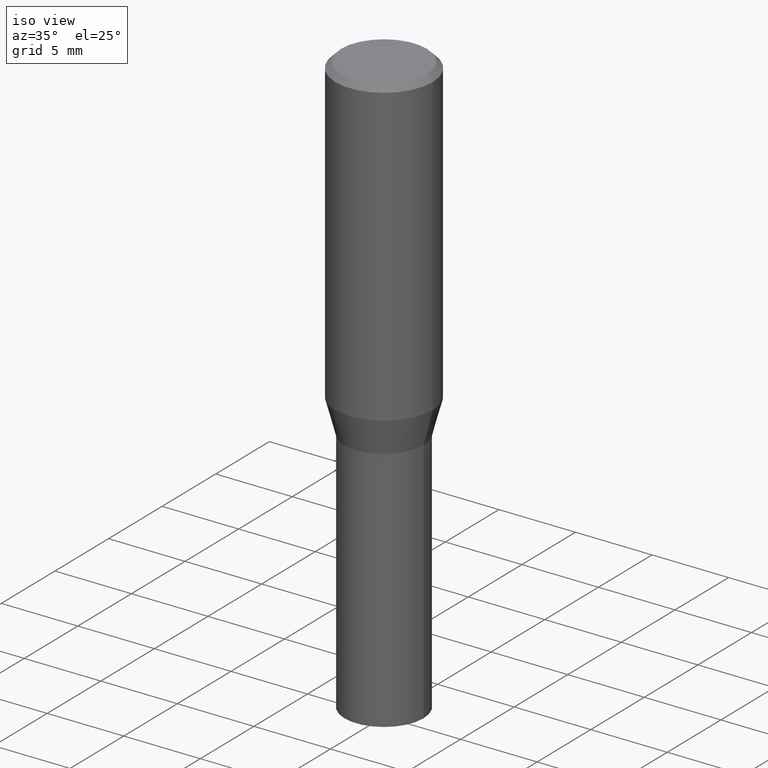
[diagram: clean part render]
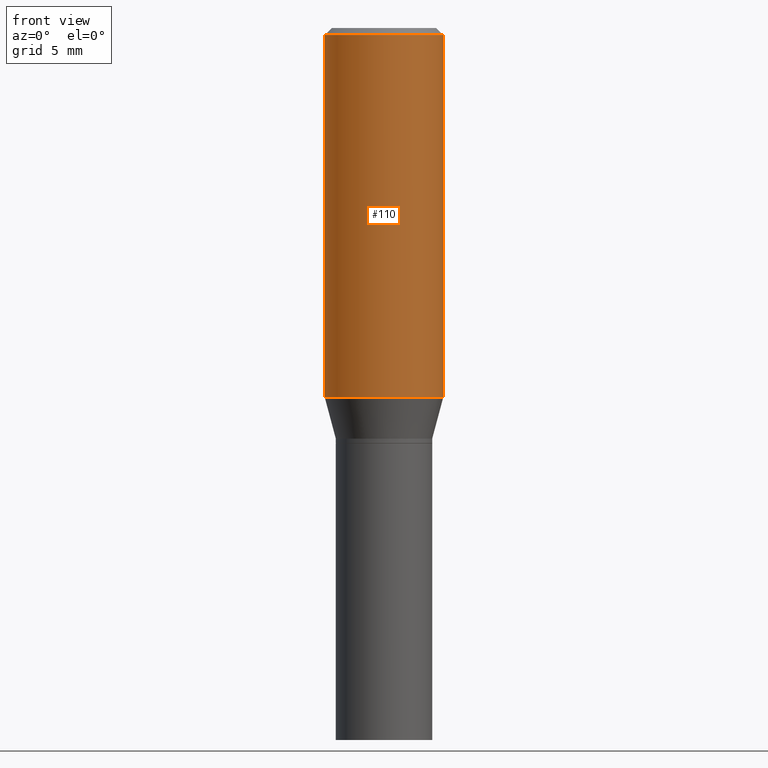
[diagram: tour spotlight — one face highlighted and labeled with its STEP entity id]
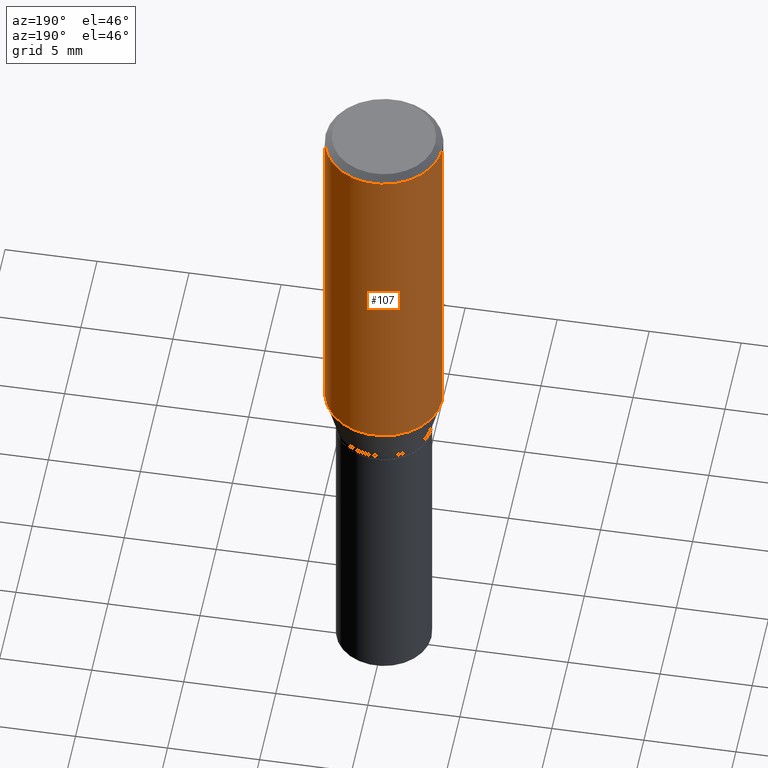
[diagram: tour spotlight — one face highlighted and labeled with its STEP entity id]
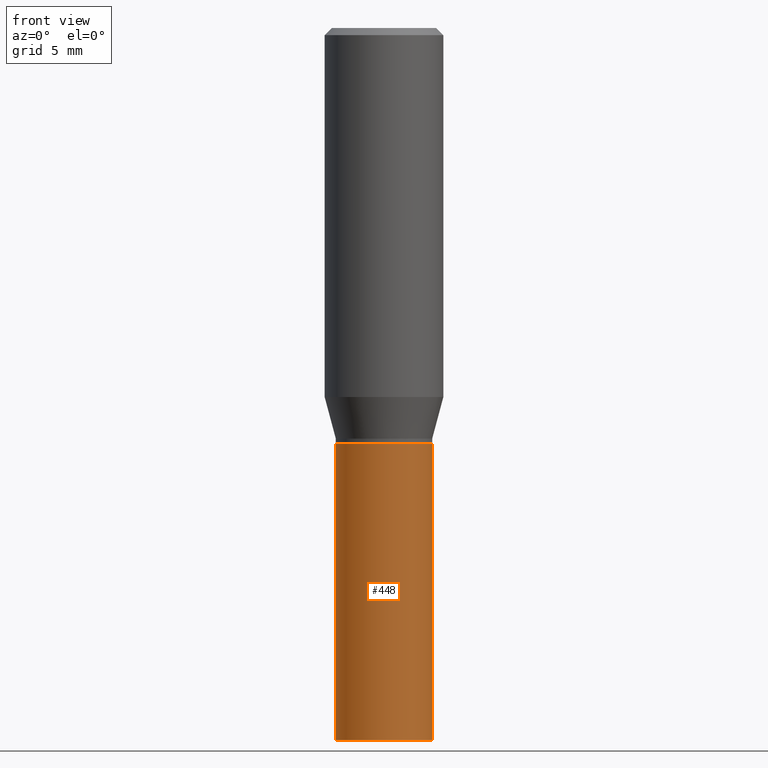
[diagram: tour spotlight — one face highlighted and labeled with its STEP entity id]
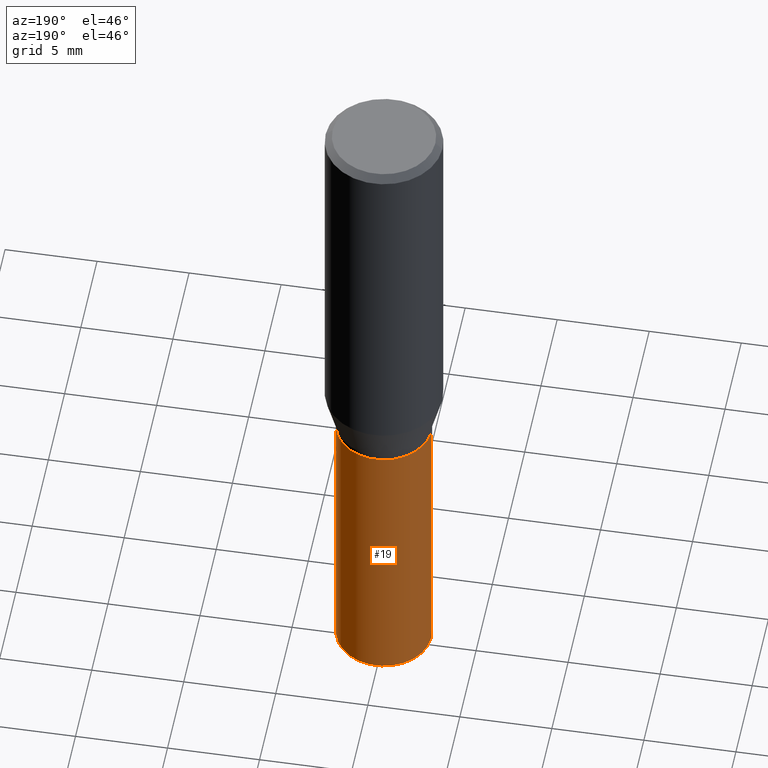
[diagram: tour spotlight — one face highlighted and labeled with its STEP entity id]
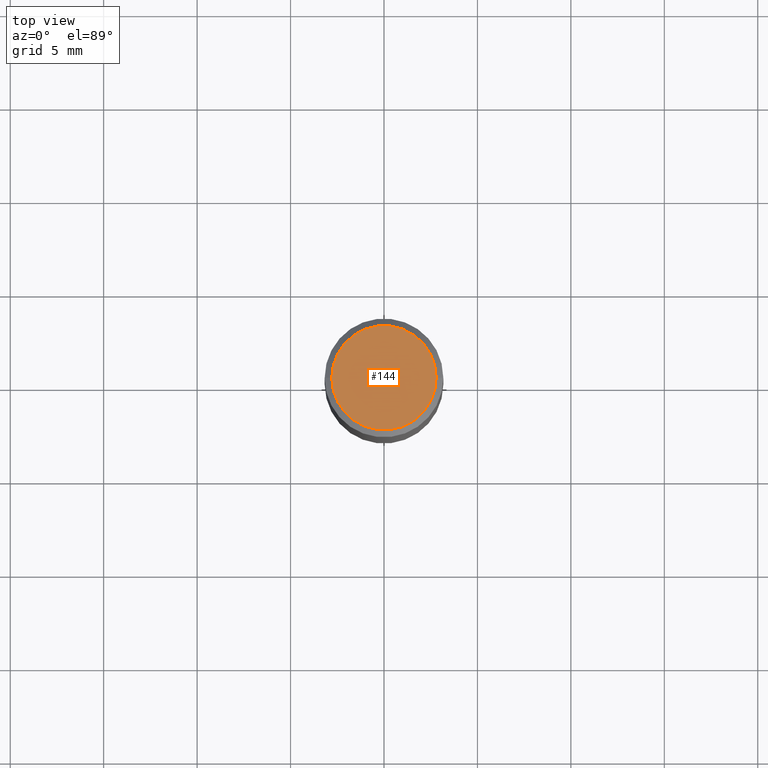
[diagram: tour spotlight — one face highlighted and labeled with its STEP entity id]
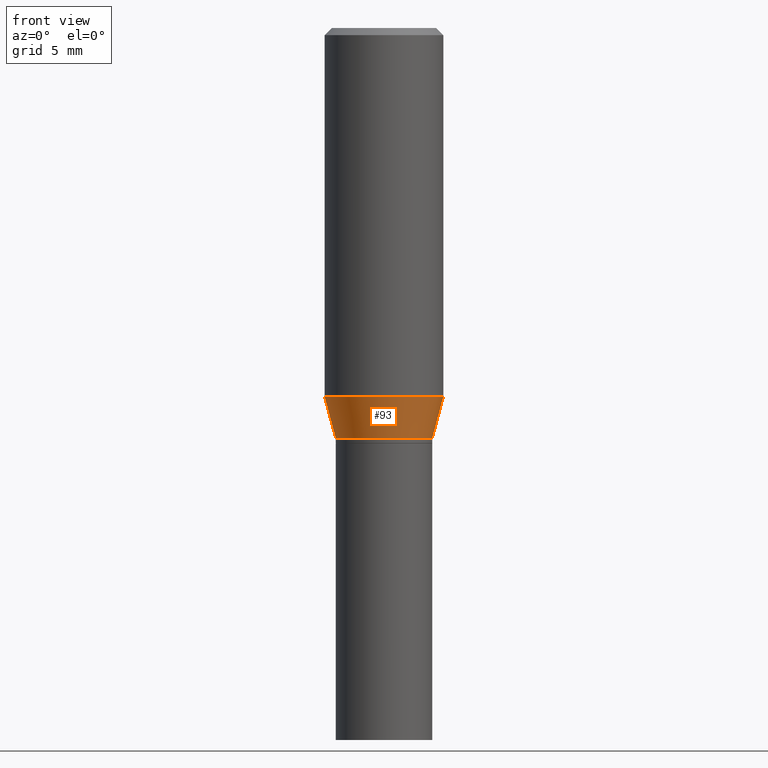
[diagram: tour spotlight — one face highlighted and labeled with its STEP entity id]
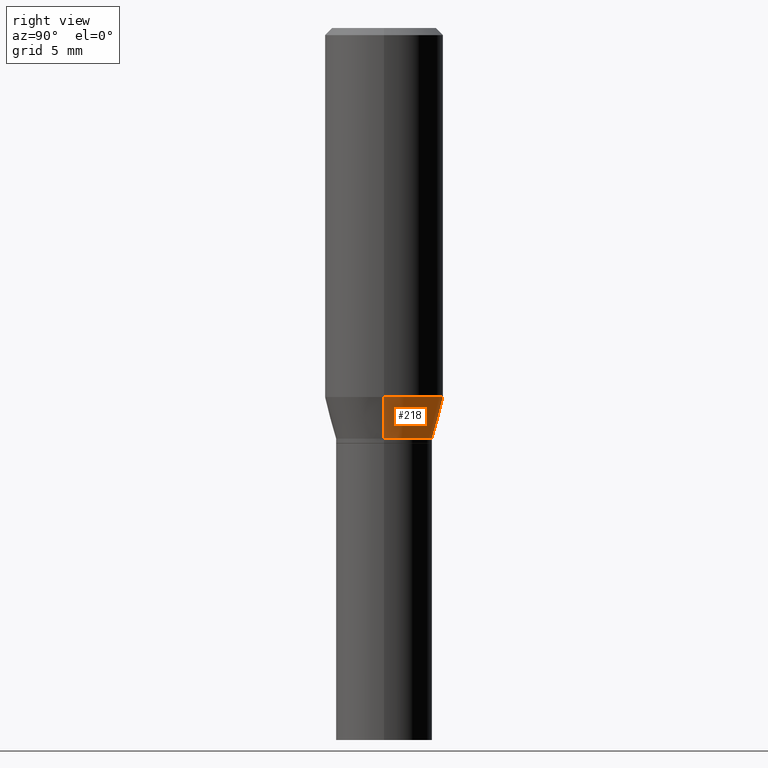
[diagram: tour spotlight — one face highlighted and labeled with its STEP entity id]
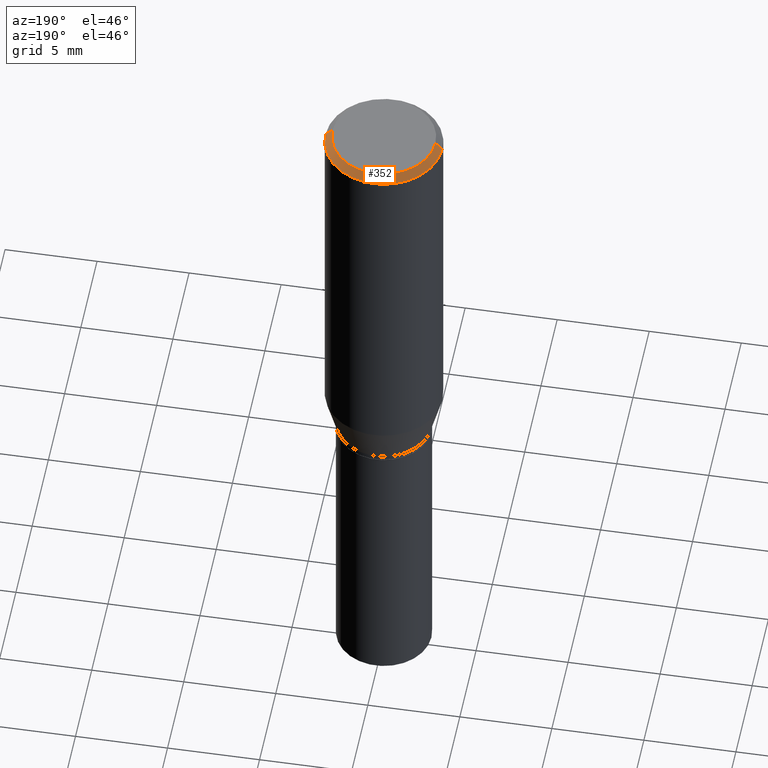
[diagram: tour spotlight — one face highlighted and labeled with its STEP entity id]
A machine part: a face-by-face anatomy tour. The part has 16 B-rep faces; the first image is the clean iso view, then the 8 largest visible faces are spotlighted one at a time (largest first), each with its STEP entity span.

Face 1 — front view, entity #110. In plain terms, the highlighted cylindrical surface (partial cylindrical patch) has radius 3.175 mm, axis along (-0, 0, 1).
Definition (entity closure, byte-faithful):
#8 = DIRECTION ( 'NONE',  ( -2.445468806185136597E-29, 3.491481338843145583E-15, 1.000000000000000000 ) ) ;
#13 = ORIENTED_EDGE ( 'NONE', *, *, #37, .T. ) ;
#14 = CARTESIAN_POINT ( 'NONE',  ( 3.668203209277705088E-31, -5.237222008264718399E-17, -0.01499999999999999944 ) ) ;
#20 = FACE_OUTER_BOUND ( 'NONE', #75, .T. ) ;
#25 = AXIS2_PLACEMENT_3D ( 'NONE', #83, #262, #378 ) ;
#31 = VERTEX_POINT ( 'NONE', #142 ) ;
#37 = EDGE_CURVE ( 'NONE', #318, #52, #246, .T. ) ;
#52 = VERTEX_POINT ( 'NONE', #418 ) ;
#71 = CARTESIAN_POINT ( 'NONE',  ( 0.1250000000000000000, -8.728703347107833388E-16, 6.095220969744919741E-30 ) ) ;
#73 = DIRECTION ( 'NONE',  ( -2.445468806185136597E-29, 3.491481338843145583E-15, 1.000000000000000000 ) ) ;
#75 = EDGE_LOOP ( 'NONE', ( #401, #182, #13, #428 ) ) ;
#77 = EDGE_CURVE ( 'NONE', #31, #52, #89, .T. ) ;
#83 = CARTESIAN_POINT ( 'NONE',  ( 0.000000000000000000, 0.000000000000000000, 0.000000000000000000 ) ) ;
#89 = CIRCLE ( 'NONE', #239, 0.1250000000000000000 ) ;
#100 = CARTESIAN_POINT ( 'NONE',  ( 0.1250000000000000000, -3.587439146966948866E-15, -0.7774834085625103031 ) ) ;
#110 = ADVANCED_FACE ( 'NONE', ( #20 ), #266, .T. ) ;
#126 = VECTOR ( 'NONE', #283, 39.37007874015748143 ) ;
#137 = VECTOR ( 'NONE', #419, 39.37007874015748143 ) ;
#142 = CARTESIAN_POINT ( 'NONE',  ( -0.1250000000000000000, -4.952920964692812682E-16, -0.01499999999999999944 ) ) ;
#150 = DIRECTION ( 'NONE',  ( 1.000000000000000000, -6.982962677686266711E-15, 0.000000000000000000 ) ) ;
#181 = LINE ( 'NONE', #353, #137 ) ;
#182 = ORIENTED_EDGE ( 'NONE', *, *, #279, .T. ) ;
#198 = EDGE_CURVE ( 'NONE', #340, #31, #181, .T. ) ;
#239 = AXIS2_PLACEMENT_3D ( 'NONE', #14, #8, #150 ) ;
#246 = LINE ( 'NONE', #71, #126 ) ;
#247 = CARTESIAN_POINT ( 'NONE',  ( 1.901311422966112888E-29, -2.714568812256165922E-15, -0.7774834085625103031 ) ) ;
#262 = DIRECTION ( 'NONE',  ( -2.445468806185136597E-29, 3.491481338843145583E-15, 1.000000000000000000 ) ) ;
#266 = CYLINDRICAL_SURFACE ( 'NONE', #25, 0.1250000000000000000 ) ;
#278 = CIRCLE ( 'NONE', #295, 0.1250000000000000000 ) ;
#279 = EDGE_CURVE ( 'NONE', #340, #318, #278, .T. ) ;
#283 = DIRECTION ( 'NONE',  ( -2.445468806185136877E-29, 3.491481338843145188E-15, 1.000000000000000000 ) ) ;
#295 = AXIS2_PLACEMENT_3D ( 'NONE', #247, #73, #363 ) ;
#318 = VERTEX_POINT ( 'NONE', #100 ) ;
#340 = VERTEX_POINT ( 'NONE', #463 ) ;
#353 = CARTESIAN_POINT ( 'NONE',  ( -0.1250000000000000000, 8.881784197001252323E-16, -6.148668862818632227E-30 ) ) ;
#363 = DIRECTION ( 'NONE',  ( 1.000000000000000000, -6.982962677686266711E-15, 0.000000000000000000 ) ) ;
#378 = DIRECTION ( 'NONE',  ( 1.000000000000000000, -6.982962677686266711E-15, 4.876176775795935793E-29 ) ) ;
#401 = ORIENTED_EDGE ( 'NONE', *, *, #198, .F. ) ;
#418 = CARTESIAN_POINT ( 'NONE',  ( 0.1250000000000000000, -9.252425547934304180E-16, -0.01499999999999999944 ) ) ;
#419 = DIRECTION ( 'NONE',  ( -2.445468806185136877E-29, 3.491481338843145188E-15, 1.000000000000000000 ) ) ;
#428 = ORIENTED_EDGE ( 'NONE', *, *, #77, .F. ) ;
#463 = CARTESIAN_POINT ( 'NONE',  ( -0.1250000000000000000, -1.826390392556040295E-15, -0.7774834085625103031 ) ) ;

Face 2 — auxiliary view, entity #107. In plain terms, the highlighted cylindrical surface (partial cylindrical patch) has radius 3.175 mm, axis along (-0, 0, 1).
Definition (entity closure, byte-faithful):
#18 = ORIENTED_EDGE ( 'NONE', *, *, #37, .F. ) ;
#23 = CARTESIAN_POINT ( 'NONE',  ( 0.000000000000000000, 0.000000000000000000, 0.000000000000000000 ) ) ;
#31 = VERTEX_POINT ( 'NONE', #142 ) ;
#35 = DIRECTION ( 'NONE',  ( -2.445468806185136597E-29, 3.491481338843145583E-15, 1.000000000000000000 ) ) ;
#37 = EDGE_CURVE ( 'NONE', #318, #52, #246, .T. ) ;
#52 = VERTEX_POINT ( 'NONE', #418 ) ;
#53 = AXIS2_PLACEMENT_3D ( 'NONE', #245, #319, #392 ) ;
#71 = CARTESIAN_POINT ( 'NONE',  ( 0.1250000000000000000, -8.728703347107833388E-16, 6.095220969744919741E-30 ) ) ;
#80 = CYLINDRICAL_SURFACE ( 'NONE', #302, 0.1250000000000000000 ) ;
#100 = CARTESIAN_POINT ( 'NONE',  ( 0.1250000000000000000, -3.587439146966948866E-15, -0.7774834085625103031 ) ) ;
#107 = ADVANCED_FACE ( 'NONE', ( #404 ), #80, .T. ) ;
#126 = VECTOR ( 'NONE', #283, 39.37007874015748143 ) ;
#127 = CIRCLE ( 'NONE', #249, 0.1250000000000000000 ) ;
#137 = VECTOR ( 'NONE', #419, 39.37007874015748143 ) ;
#142 = CARTESIAN_POINT ( 'NONE',  ( -0.1250000000000000000, -4.952920964692812682E-16, -0.01499999999999999944 ) ) ;
#164 = EDGE_CURVE ( 'NONE', #52, #31, #127, .T. ) ;
#181 = LINE ( 'NONE', #353, #137 ) ;
#183 = ORIENTED_EDGE ( 'NONE', *, *, #336, .T. ) ;
#198 = EDGE_CURVE ( 'NONE', #340, #31, #181, .T. ) ;
#245 = CARTESIAN_POINT ( 'NONE',  ( 1.901311422966112888E-29, -2.714568812256165922E-15, -0.7774834085625103031 ) ) ;
#246 = LINE ( 'NONE', #71, #126 ) ;
#249 = AXIS2_PLACEMENT_3D ( 'NONE', #286, #35, #393 ) ;
#253 = EDGE_LOOP ( 'NONE', ( #183, #345, #297, #18 ) ) ;
#283 = DIRECTION ( 'NONE',  ( -2.445468806185136877E-29, 3.491481338843145188E-15, 1.000000000000000000 ) ) ;
#286 = CARTESIAN_POINT ( 'NONE',  ( 3.668203209277705088E-31, -5.237222008264718399E-17, -0.01499999999999999944 ) ) ;
#297 = ORIENTED_EDGE ( 'NONE', *, *, #164, .F. ) ;
#302 = AXIS2_PLACEMENT_3D ( 'NONE', #23, #351, #308 ) ;
#308 = DIRECTION ( 'NONE',  ( 1.000000000000000000, -6.982962677686266711E-15, 4.876176775795935793E-29 ) ) ;
#318 = VERTEX_POINT ( 'NONE', #100 ) ;
#319 = DIRECTION ( 'NONE',  ( -2.445468806185136597E-29, 3.491481338843145583E-15, 1.000000000000000000 ) ) ;
#336 = EDGE_CURVE ( 'NONE', #318, #340, #395, .T. ) ;
#340 = VERTEX_POINT ( 'NONE', #463 ) ;
#345 = ORIENTED_EDGE ( 'NONE', *, *, #198, .T. ) ;
#351 = DIRECTION ( 'NONE',  ( -2.445468806185136597E-29, 3.491481338843145583E-15, 1.000000000000000000 ) ) ;
#353 = CARTESIAN_POINT ( 'NONE',  ( -0.1250000000000000000, 8.881784197001252323E-16, -6.148668862818632227E-30 ) ) ;
#392 = DIRECTION ( 'NONE',  ( 1.000000000000000000, -6.982962677686266711E-15, 0.000000000000000000 ) ) ;
#393 = DIRECTION ( 'NONE',  ( 1.000000000000000000, -6.982962677686266711E-15, 0.000000000000000000 ) ) ;
#395 = CIRCLE ( 'NONE', #53, 0.1250000000000000000 ) ;
#404 = FACE_OUTER_BOUND ( 'NONE', #253, .T. ) ;
#418 = CARTESIAN_POINT ( 'NONE',  ( 0.1250000000000000000, -9.252425547934304180E-16, -0.01499999999999999944 ) ) ;
#419 = DIRECTION ( 'NONE',  ( -2.445468806185136877E-29, 3.491481338843145188E-15, 1.000000000000000000 ) ) ;
#463 = CARTESIAN_POINT ( 'NONE',  ( -0.1250000000000000000, -1.826390392556040295E-15, -0.7774834085625103031 ) ) ;

Face 3 — front view, entity #448. In plain terms, the highlighted cylindrical surface (partial cylindrical patch) has radius 2.5794 mm, axis along (-0, 0, 1).
Definition (entity closure, byte-faithful):
#5 = AXIS2_PLACEMENT_3D ( 'NONE', #337, #74, #306 ) ;
#7 = ORIENTED_EDGE ( 'NONE', *, *, #211, .T. ) ;
#21 = CIRCLE ( 'NONE', #194, 0.1015500000000000014 ) ;
#30 = EDGE_CURVE ( 'NONE', #42, #159, #365, .T. ) ;
#39 = CARTESIAN_POINT ( 'NONE',  ( 3.668203209277704895E-29, -5.237222008264718177E-15, -1.500000000000000222 ) ) ;
#42 = VERTEX_POINT ( 'NONE', #357 ) ;
#49 = EDGE_LOOP ( 'NONE', ( #432, #436, #7, #85 ) ) ;
#74 = DIRECTION ( 'NONE',  ( -2.445468806185136597E-29, 3.491481338843145583E-15, 1.000000000000000000 ) ) ;
#82 = VERTEX_POINT ( 'NONE', #446 ) ;
#85 = ORIENTED_EDGE ( 'NONE', *, *, #180, .F. ) ;
#91 = CIRCLE ( 'NONE', #354, 0.1015500000000000014 ) ;
#105 = CARTESIAN_POINT ( 'NONE',  ( 0.1015500000000000014, -3.764166031406792723E-15, -0.8750000000000001110 ) ) ;
#140 = DIRECTION ( 'NONE',  ( -2.445468806185136877E-29, 3.491481338843145188E-15, 1.000000000000000000 ) ) ;
#141 = LINE ( 'NONE', #178, #441 ) ;
#154 = FACE_OUTER_BOUND ( 'NONE', #49, .T. ) ;
#159 = VERTEX_POINT ( 'NONE', #388 ) ;
#178 = CARTESIAN_POINT ( 'NONE',  ( 0.1015500000000000014, -7.091198599190403876E-16, 4.951757515820773072E-30 ) ) ;
#180 = EDGE_CURVE ( 'NONE', #159, #343, #91, .T. ) ;
#194 = AXIS2_PLACEMENT_3D ( 'NONE', #39, #214, #458 ) ;
#202 = CARTESIAN_POINT ( 'NONE',  ( 2.139785205411994522E-29, -3.055046171487752730E-15, -0.8750000000000001110 ) ) ;
#211 = EDGE_CURVE ( 'NONE', #82, #343, #141, .T. ) ;
#214 = DIRECTION ( 'NONE',  ( -2.445468806185136597E-29, 3.491481338843145583E-15, 1.000000000000000000 ) ) ;
#232 = EDGE_CURVE ( 'NONE', #42, #82, #21, .T. ) ;
#264 = CYLINDRICAL_SURFACE ( 'NONE', #5, 0.1015500000000000014 ) ;
#306 = DIRECTION ( 'NONE',  ( 1.000000000000000000, -6.982962677686266711E-15, 4.876176775795935793E-29 ) ) ;
#329 = DIRECTION ( 'NONE',  ( -2.445468806185136597E-29, 3.491481338843145583E-15, 1.000000000000000000 ) ) ;
#337 = CARTESIAN_POINT ( 'NONE',  ( 0.000000000000000000, 0.000000000000000000, 0.000000000000000000 ) ) ;
#343 = VERTEX_POINT ( 'NONE', #105 ) ;
#354 = AXIS2_PLACEMENT_3D ( 'NONE', #202, #329, #455 ) ;
#357 = CARTESIAN_POINT ( 'NONE',  ( -0.1015500000000000014, -3.424577941711853508E-15, -1.500000000000000222 ) ) ;
#365 = LINE ( 'NONE', #456, #439 ) ;
#388 = CARTESIAN_POINT ( 'NONE',  ( -0.1015500000000000014, -3.424577941711853508E-15, -0.8750000000000001110 ) ) ;
#425 = DIRECTION ( 'NONE',  ( -2.445468806185136877E-29, 3.491481338843145188E-15, 1.000000000000000000 ) ) ;
#432 = ORIENTED_EDGE ( 'NONE', *, *, #30, .F. ) ;
#436 = ORIENTED_EDGE ( 'NONE', *, *, #232, .T. ) ;
#439 = VECTOR ( 'NONE', #140, 39.37007874015748143 ) ;
#441 = VECTOR ( 'NONE', #425, 39.37007874015748143 ) ;
#446 = CARTESIAN_POINT ( 'NONE',  ( 0.1015500000000000014, -5.946341868183758959E-15, -1.500000000000000222 ) ) ;
#448 = ADVANCED_FACE ( 'NONE', ( #154 ), #264, .T. ) ;
#455 = DIRECTION ( 'NONE',  ( 1.000000000000000000, -6.982962677686264344E-15, 0.000000000000000000 ) ) ;
#456 = CARTESIAN_POINT ( 'NONE',  ( -0.1015500000000000014, 7.215561481643817485E-16, -4.995178584153857101E-30 ) ) ;
#458 = DIRECTION ( 'NONE',  ( 1.000000000000000000, -6.982962677686264344E-15, 0.000000000000000000 ) ) ;

Face 4 — auxiliary view, entity #19. In plain terms, the highlighted cylindrical surface (partial cylindrical patch) has radius 2.5794 mm, axis along (-0, 0, 1).
Definition (entity closure, byte-faithful):
#1 = CARTESIAN_POINT ( 'NONE',  ( 2.139785205411994522E-29, -3.055046171487752730E-15, -0.8750000000000001110 ) ) ;
#19 = ADVANCED_FACE ( 'NONE', ( #398 ), #426, .T. ) ;
#26 = DIRECTION ( 'NONE',  ( 1.000000000000000000, -6.982962677686264344E-15, 0.000000000000000000 ) ) ;
#30 = EDGE_CURVE ( 'NONE', #42, #159, #365, .T. ) ;
#42 = VERTEX_POINT ( 'NONE', #357 ) ;
#62 = AXIS2_PLACEMENT_3D ( 'NONE', #173, #325, #26 ) ;
#82 = VERTEX_POINT ( 'NONE', #446 ) ;
#105 = CARTESIAN_POINT ( 'NONE',  ( 0.1015500000000000014, -3.764166031406792723E-15, -0.8750000000000001110 ) ) ;
#111 = ORIENTED_EDGE ( 'NONE', *, *, #402, .F. ) ;
#140 = DIRECTION ( 'NONE',  ( -2.445468806185136877E-29, 3.491481338843145188E-15, 1.000000000000000000 ) ) ;
#141 = LINE ( 'NONE', #178, #441 ) ;
#146 = DIRECTION ( 'NONE',  ( 1.000000000000000000, -6.982962677686264344E-15, 0.000000000000000000 ) ) ;
#158 = DIRECTION ( 'NONE',  ( -2.445468806185136597E-29, 3.491481338843145583E-15, 1.000000000000000000 ) ) ;
#159 = VERTEX_POINT ( 'NONE', #388 ) ;
#173 = CARTESIAN_POINT ( 'NONE',  ( 3.668203209277704895E-29, -5.237222008264718177E-15, -1.500000000000000222 ) ) ;
#178 = CARTESIAN_POINT ( 'NONE',  ( 0.1015500000000000014, -7.091198599190403876E-16, 4.951757515820773072E-30 ) ) ;
#191 = ORIENTED_EDGE ( 'NONE', *, *, #211, .F. ) ;
#211 = EDGE_CURVE ( 'NONE', #82, #343, #141, .T. ) ;
#217 = DIRECTION ( 'NONE',  ( -2.445468806185136597E-29, 3.491481338843145583E-15, 1.000000000000000000 ) ) ;
#221 = ORIENTED_EDGE ( 'NONE', *, *, #30, .T. ) ;
#222 = DIRECTION ( 'NONE',  ( 1.000000000000000000, -6.982962677686266711E-15, 4.876176775795935793E-29 ) ) ;
#223 = AXIS2_PLACEMENT_3D ( 'NONE', #1, #158, #146 ) ;
#260 = CIRCLE ( 'NONE', #62, 0.1015500000000000014 ) ;
#289 = EDGE_CURVE ( 'NONE', #82, #42, #260, .T. ) ;
#325 = DIRECTION ( 'NONE',  ( -2.445468806185136597E-29, 3.491481338843145583E-15, 1.000000000000000000 ) ) ;
#326 = CARTESIAN_POINT ( 'NONE',  ( 0.000000000000000000, 0.000000000000000000, 0.000000000000000000 ) ) ;
#343 = VERTEX_POINT ( 'NONE', #105 ) ;
#357 = CARTESIAN_POINT ( 'NONE',  ( -0.1015500000000000014, -3.424577941711853508E-15, -1.500000000000000222 ) ) ;
#365 = LINE ( 'NONE', #456, #439 ) ;
#369 = CIRCLE ( 'NONE', #223, 0.1015500000000000014 ) ;
#379 = ORIENTED_EDGE ( 'NONE', *, *, #289, .T. ) ;
#388 = CARTESIAN_POINT ( 'NONE',  ( -0.1015500000000000014, -3.424577941711853508E-15, -0.8750000000000001110 ) ) ;
#398 = FACE_OUTER_BOUND ( 'NONE', #410, .T. ) ;
#402 = EDGE_CURVE ( 'NONE', #343, #159, #369, .T. ) ;
#410 = EDGE_LOOP ( 'NONE', ( #379, #221, #111, #191 ) ) ;
#425 = DIRECTION ( 'NONE',  ( -2.445468806185136877E-29, 3.491481338843145188E-15, 1.000000000000000000 ) ) ;
#426 = CYLINDRICAL_SURFACE ( 'NONE', #452, 0.1015500000000000014 ) ;
#439 = VECTOR ( 'NONE', #140, 39.37007874015748143 ) ;
#441 = VECTOR ( 'NONE', #425, 39.37007874015748143 ) ;
#446 = CARTESIAN_POINT ( 'NONE',  ( 0.1015500000000000014, -5.946341868183758959E-15, -1.500000000000000222 ) ) ;
#452 = AXIS2_PLACEMENT_3D ( 'NONE', #326, #217, #222 ) ;
#456 = CARTESIAN_POINT ( 'NONE',  ( -0.1015500000000000014, 7.215561481643817485E-16, -4.995178584153857101E-30 ) ) ;

Face 5 — top view, entity #144. In plain terms, the highlighted planar face has unit normal (0, -0, -1).
Definition (entity closure, byte-faithful):
#3 = AXIS2_PLACEMENT_3D ( 'NONE', #235, #348, #102 ) ;
#47 = ORIENTED_EDGE ( 'NONE', *, *, #125, .T. ) ;
#57 = FACE_OUTER_BOUND ( 'NONE', #377, .T. ) ;
#68 = EDGE_CURVE ( 'NONE', #257, #338, #203, .T. ) ;
#70 = CARTESIAN_POINT ( 'NONE',  ( 0.1100000000000000006, -8.322946247794783877E-16, 6.246531070176009917E-17 ) ) ;
#72 = AXIS2_PLACEMENT_3D ( 'NONE', #282, #88, #113 ) ;
#88 = DIRECTION ( 'NONE',  ( 2.438088387897960049E-29, -3.491481338843145188E-15, -1.000000000000000000 ) ) ;
#90 = PLANE ( 'NONE',  #72 ) ;
#102 = DIRECTION ( 'NONE',  ( 1.000000000000000000, -6.982962677686266711E-15, 4.873416144172425341E-29 ) ) ;
#109 = ORIENTED_EDGE ( 'NONE', *, *, #68, .T. ) ;
#113 = DIRECTION ( 'NONE',  ( -1.000000000000000000, 6.982962677686265922E-15, -4.876176775795935793E-29 ) ) ;
#116 = DIRECTION ( 'NONE',  ( 1.000000000000000000, -6.982962677686266711E-15, 4.873416144172425341E-29 ) ) ;
#125 = EDGE_CURVE ( 'NONE', #338, #257, #449, .T. ) ;
#143 = CARTESIAN_POINT ( 'NONE',  ( -0.1100000000000000006, 7.943120045868128186E-16, 6.246531070174904280E-17 ) ) ;
#144 = ADVANCED_FACE ( 'NONE', ( #57 ), #90, .F. ) ;
#187 = DIRECTION ( 'NONE',  ( -2.445468806185136597E-29, 3.491481338843145583E-15, 1.000000000000000000 ) ) ;
#203 = CIRCLE ( 'NONE', #387, 0.1100000000000000006 ) ;
#235 = CARTESIAN_POINT ( 'NONE',  ( -1.527569687898032182E-45, 2.180964666402148975E-31, 6.246531070175450319E-17 ) ) ;
#257 = VERTEX_POINT ( 'NONE', #143 ) ;
#282 = CARTESIAN_POINT ( 'NONE',  ( 7.681258945454893776E-16, 0.1100000000000000006, -3.528302919218688424E-16 ) ) ;
#309 = CARTESIAN_POINT ( 'NONE',  ( -1.527569687898032182E-45, 2.180964666402148975E-31, 6.246531070175450319E-17 ) ) ;
#338 = VERTEX_POINT ( 'NONE', #70 ) ;
#348 = DIRECTION ( 'NONE',  ( -2.445468806185136597E-29, 3.491481338843145583E-15, 1.000000000000000000 ) ) ;
#377 = EDGE_LOOP ( 'NONE', ( #109, #47 ) ) ;
#387 = AXIS2_PLACEMENT_3D ( 'NONE', #309, #187, #116 ) ;
#449 = CIRCLE ( 'NONE', #3, 0.1100000000000000006 ) ;

Face 6 — front view, entity #93. In plain terms, the highlighted conical surface has half-angle 15 deg.
Definition (entity closure, byte-faithful):
#2 = VERTEX_POINT ( 'NONE', #238 ) ;
#28 = CARTESIAN_POINT ( 'NONE',  ( -0.1015500000000000430, -2.298575209934939135E-15, -0.8650000000000001021 ) ) ;
#29 = DIRECTION ( 'NONE',  ( 0.2588190451025214611, 1.565188264969620982E-15, 0.9659258262890679791 ) ) ;
#43 = CONICAL_SURFACE ( 'NONE', #231, 0.1015500000000000430, 0.2617993877991501850 ) ;
#55 = EDGE_CURVE ( 'NONE', #2, #340, #206, .T. ) ;
#69 = CARTESIAN_POINT ( 'NONE',  ( 0.1015500000000000430, -3.729251218018361863E-15, -0.8650000000000001021 ) ) ;
#73 = DIRECTION ( 'NONE',  ( -2.445468806185136597E-29, 3.491481338843145583E-15, 1.000000000000000000 ) ) ;
#79 = VECTOR ( 'NONE', #244, 39.37007874015748143 ) ;
#93 = ADVANCED_FACE ( 'NONE', ( #411 ), #43, .T. ) ;
#100 = CARTESIAN_POINT ( 'NONE',  ( 0.1250000000000000000, -3.587439146966948866E-15, -0.7774834085625103031 ) ) ;
#104 = VECTOR ( 'NONE', #29, 39.37007874015748143 ) ;
#139 = DIRECTION ( 'NONE',  ( 1.000000000000000000, -6.982962677686266711E-15, 0.000000000000000000 ) ) ;
#145 = AXIS2_PLACEMENT_3D ( 'NONE', #168, #427, #139 ) ;
#168 = CARTESIAN_POINT ( 'NONE',  ( 2.115330517350143537E-29, -3.020131358099321081E-15, -0.8650000000000001021 ) ) ;
#184 = EDGE_CURVE ( 'NONE', #186, #318, #360, .T. ) ;
#186 = VERTEX_POINT ( 'NONE', #464 ) ;
#206 = LINE ( 'NONE', #28, #79 ) ;
#230 = ORIENTED_EDGE ( 'NONE', *, *, #184, .T. ) ;
#231 = AXIS2_PLACEMENT_3D ( 'NONE', #300, #254, #368 ) ;
#238 = CARTESIAN_POINT ( 'NONE',  ( -0.1015500000000000430, -2.062482801245490110E-15, -0.8650000000000001021 ) ) ;
#244 = DIRECTION ( 'NONE',  ( -0.2588190451025214611, 5.211531920934550253E-15, 0.9659258262890679791 ) ) ;
#247 = CARTESIAN_POINT ( 'NONE',  ( 1.901311422966112888E-29, -2.714568812256165922E-15, -0.7774834085625103031 ) ) ;
#254 = DIRECTION ( 'NONE',  ( -2.445468806185136597E-29, 3.491481338843145583E-15, 1.000000000000000000 ) ) ;
#277 = EDGE_LOOP ( 'NONE', ( #408, #409, #230, #332 ) ) ;
#278 = CIRCLE ( 'NONE', #295, 0.1250000000000000000 ) ;
#279 = EDGE_CURVE ( 'NONE', #340, #318, #278, .T. ) ;
#295 = AXIS2_PLACEMENT_3D ( 'NONE', #247, #73, #363 ) ;
#300 = CARTESIAN_POINT ( 'NONE',  ( 2.115330517350143537E-29, -3.020131358099321081E-15, -0.8650000000000001021 ) ) ;
#301 = EDGE_CURVE ( 'NONE', #2, #186, #361, .T. ) ;
#318 = VERTEX_POINT ( 'NONE', #100 ) ;
#332 = ORIENTED_EDGE ( 'NONE', *, *, #279, .F. ) ;
#340 = VERTEX_POINT ( 'NONE', #463 ) ;
#360 = LINE ( 'NONE', #69, #104 ) ;
#361 = CIRCLE ( 'NONE', #145, 0.1015500000000000430 ) ;
#363 = DIRECTION ( 'NONE',  ( 1.000000000000000000, -6.982962677686266711E-15, 0.000000000000000000 ) ) ;
#368 = DIRECTION ( 'NONE',  ( 1.000000000000000000, -6.982962677686266711E-15, 0.000000000000000000 ) ) ;
#408 = ORIENTED_EDGE ( 'NONE', *, *, #55, .F. ) ;
#409 = ORIENTED_EDGE ( 'NONE', *, *, #301, .T. ) ;
#411 = FACE_OUTER_BOUND ( 'NONE', #277, .T. ) ;
#427 = DIRECTION ( 'NONE',  ( -2.445468806185136597E-29, 3.491481338843145583E-15, 1.000000000000000000 ) ) ;
#463 = CARTESIAN_POINT ( 'NONE',  ( -0.1250000000000000000, -1.826390392556040295E-15, -0.7774834085625103031 ) ) ;
#464 = CARTESIAN_POINT ( 'NONE',  ( 0.1015500000000000430, -3.729251218018361863E-15, -0.8650000000000001021 ) ) ;

Face 7 — right view, entity #218. In plain terms, the highlighted conical surface has half-angle 15 deg.
Definition (entity closure, byte-faithful):
#2 = VERTEX_POINT ( 'NONE', #238 ) ;
#28 = CARTESIAN_POINT ( 'NONE',  ( -0.1015500000000000430, -2.298575209934939135E-15, -0.8650000000000001021 ) ) ;
#29 = DIRECTION ( 'NONE',  ( 0.2588190451025214611, 1.565188264969620982E-15, 0.9659258262890679791 ) ) ;
#34 = CONICAL_SURFACE ( 'NONE', #429, 0.1015500000000000430, 0.2617993877991501850 ) ;
#53 = AXIS2_PLACEMENT_3D ( 'NONE', #245, #319, #392 ) ;
#55 = EDGE_CURVE ( 'NONE', #2, #340, #206, .T. ) ;
#65 = FACE_OUTER_BOUND ( 'NONE', #103, .T. ) ;
#69 = CARTESIAN_POINT ( 'NONE',  ( 0.1015500000000000430, -3.729251218018361863E-15, -0.8650000000000001021 ) ) ;
#79 = VECTOR ( 'NONE', #244, 39.37007874015748143 ) ;
#94 = DIRECTION ( 'NONE',  ( -2.445468806185136597E-29, 3.491481338843145583E-15, 1.000000000000000000 ) ) ;
#99 = DIRECTION ( 'NONE',  ( 1.000000000000000000, -6.982962677686266711E-15, 0.000000000000000000 ) ) ;
#100 = CARTESIAN_POINT ( 'NONE',  ( 0.1250000000000000000, -3.587439146966948866E-15, -0.7774834085625103031 ) ) ;
#103 = EDGE_LOOP ( 'NONE', ( #119, #273, #307, #261 ) ) ;
#104 = VECTOR ( 'NONE', #29, 39.37007874015748143 ) ;
#119 = ORIENTED_EDGE ( 'NONE', *, *, #285, .T. ) ;
#169 = CARTESIAN_POINT ( 'NONE',  ( 2.115330517350143537E-29, -3.020131358099321081E-15, -0.8650000000000001021 ) ) ;
#184 = EDGE_CURVE ( 'NONE', #186, #318, #360, .T. ) ;
#186 = VERTEX_POINT ( 'NONE', #464 ) ;
#200 = AXIS2_PLACEMENT_3D ( 'NONE', #169, #423, #293 ) ;
#206 = LINE ( 'NONE', #28, #79 ) ;
#218 = ADVANCED_FACE ( 'NONE', ( #65 ), #34, .T. ) ;
#238 = CARTESIAN_POINT ( 'NONE',  ( -0.1015500000000000430, -2.062482801245490110E-15, -0.8650000000000001021 ) ) ;
#244 = DIRECTION ( 'NONE',  ( -0.2588190451025214611, 5.211531920934550253E-15, 0.9659258262890679791 ) ) ;
#245 = CARTESIAN_POINT ( 'NONE',  ( 1.901311422966112888E-29, -2.714568812256165922E-15, -0.7774834085625103031 ) ) ;
#261 = ORIENTED_EDGE ( 'NONE', *, *, #184, .F. ) ;
#273 = ORIENTED_EDGE ( 'NONE', *, *, #55, .T. ) ;
#285 = EDGE_CURVE ( 'NONE', #186, #2, #421, .T. ) ;
#293 = DIRECTION ( 'NONE',  ( 1.000000000000000000, -6.982962677686266711E-15, 0.000000000000000000 ) ) ;
#307 = ORIENTED_EDGE ( 'NONE', *, *, #336, .F. ) ;
#318 = VERTEX_POINT ( 'NONE', #100 ) ;
#319 = DIRECTION ( 'NONE',  ( -2.445468806185136597E-29, 3.491481338843145583E-15, 1.000000000000000000 ) ) ;
#336 = EDGE_CURVE ( 'NONE', #318, #340, #395, .T. ) ;
#340 = VERTEX_POINT ( 'NONE', #463 ) ;
#359 = CARTESIAN_POINT ( 'NONE',  ( 2.115330517350143537E-29, -3.020131358099321081E-15, -0.8650000000000001021 ) ) ;
#360 = LINE ( 'NONE', #69, #104 ) ;
#392 = DIRECTION ( 'NONE',  ( 1.000000000000000000, -6.982962677686266711E-15, 0.000000000000000000 ) ) ;
#395 = CIRCLE ( 'NONE', #53, 0.1250000000000000000 ) ;
#421 = CIRCLE ( 'NONE', #200, 0.1015500000000000430 ) ;
#423 = DIRECTION ( 'NONE',  ( -2.445468806185136597E-29, 3.491481338843145583E-15, 1.000000000000000000 ) ) ;
#429 = AXIS2_PLACEMENT_3D ( 'NONE', #359, #94, #99 ) ;
#463 = CARTESIAN_POINT ( 'NONE',  ( -0.1250000000000000000, -1.826390392556040295E-15, -0.7774834085625103031 ) ) ;
#464 = CARTESIAN_POINT ( 'NONE',  ( 0.1015500000000000430, -3.729251218018361863E-15, -0.8650000000000001021 ) ) ;

Face 8 — auxiliary view, entity #352. In plain terms, the highlighted conical surface has half-angle 45 deg.
Definition (entity closure, byte-faithful):
#3 = AXIS2_PLACEMENT_3D ( 'NONE', #235, #348, #102 ) ;
#31 = VERTEX_POINT ( 'NONE', #142 ) ;
#35 = DIRECTION ( 'NONE',  ( -2.445468806185136597E-29, 3.491481338843145583E-15, 1.000000000000000000 ) ) ;
#52 = VERTEX_POINT ( 'NONE', #418 ) ;
#60 = FACE_OUTER_BOUND ( 'NONE', #190, .T. ) ;
#70 = CARTESIAN_POINT ( 'NONE',  ( 0.1100000000000000006, -8.322946247794783877E-16, 6.246531070176009917E-17 ) ) ;
#97 = EDGE_CURVE ( 'NONE', #338, #52, #381, .T. ) ;
#98 = CONICAL_SURFACE ( 'NONE', #413, 0.1250000000000000000, 0.7853981633974460586 ) ;
#102 = DIRECTION ( 'NONE',  ( 1.000000000000000000, -6.982962677686266711E-15, 4.873416144172425341E-29 ) ) ;
#112 = DIRECTION ( 'NONE',  ( 0.7071067811865459074, -7.319954787623249734E-15, -0.7071067811865491270 ) ) ;
#125 = EDGE_CURVE ( 'NONE', #338, #257, #449, .T. ) ;
#127 = CIRCLE ( 'NONE', #249, 0.1250000000000000000 ) ;
#132 = CARTESIAN_POINT ( 'NONE',  ( 3.668203209277705088E-31, -5.237222008264718399E-17, -0.01499999999999999944 ) ) ;
#142 = CARTESIAN_POINT ( 'NONE',  ( -0.1250000000000000000, -4.952920964692812682E-16, -0.01499999999999999944 ) ) ;
#143 = CARTESIAN_POINT ( 'NONE',  ( -0.1100000000000000006, 7.943120045868128186E-16, 6.246531070174904280E-17 ) ) ;
#164 = EDGE_CURVE ( 'NONE', #52, #31, #127, .T. ) ;
#172 = ORIENTED_EDGE ( 'NONE', *, *, #164, .T. ) ;
#190 = EDGE_LOOP ( 'NONE', ( #310, #305, #172, #227 ) ) ;
#210 = DIRECTION ( 'NONE',  ( 2.445468806185136597E-29, -3.491481338843145583E-15, -1.000000000000000000 ) ) ;
#220 = CARTESIAN_POINT ( 'NONE',  ( -0.1250000000000000000, 8.204981146281362596E-16, -0.01499999999999999944 ) ) ;
#227 = ORIENTED_EDGE ( 'NONE', *, *, #399, .F. ) ;
#235 = CARTESIAN_POINT ( 'NONE',  ( -1.527569687898032182E-45, 2.180964666402148975E-31, 6.246531070175450319E-17 ) ) ;
#249 = AXIS2_PLACEMENT_3D ( 'NONE', #286, #35, #393 ) ;
#257 = VERTEX_POINT ( 'NONE', #143 ) ;
#263 = CARTESIAN_POINT ( 'NONE',  ( 0.1250000000000000000, -9.099344698040885245E-16, -0.01499999999999999944 ) ) ;
#272 = VECTOR ( 'NONE', #342, 39.37007874015748143 ) ;
#281 = DIRECTION ( 'NONE',  ( -1.000000000000000000, 6.982962677686266711E-15, 0.000000000000000000 ) ) ;
#286 = CARTESIAN_POINT ( 'NONE',  ( 3.668203209277705088E-31, -5.237222008264718399E-17, -0.01499999999999999944 ) ) ;
#305 = ORIENTED_EDGE ( 'NONE', *, *, #97, .T. ) ;
#310 = ORIENTED_EDGE ( 'NONE', *, *, #125, .F. ) ;
#315 = VECTOR ( 'NONE', #112, 39.37007874015748143 ) ;
#331 = LINE ( 'NONE', #220, #272 ) ;
#338 = VERTEX_POINT ( 'NONE', #70 ) ;
#342 = DIRECTION ( 'NONE',  ( -0.7071067811865459074, 2.468850131082240100E-15, -0.7071067811865491270 ) ) ;
#348 = DIRECTION ( 'NONE',  ( -2.445468806185136597E-29, 3.491481338843145583E-15, 1.000000000000000000 ) ) ;
#352 = ADVANCED_FACE ( 'NONE', ( #60 ), #98, .T. ) ;
#381 = LINE ( 'NONE', #263, #315 ) ;
#393 = DIRECTION ( 'NONE',  ( 1.000000000000000000, -6.982962677686266711E-15, 0.000000000000000000 ) ) ;
#399 = EDGE_CURVE ( 'NONE', #257, #31, #331, .T. ) ;
#413 = AXIS2_PLACEMENT_3D ( 'NONE', #132, #210, #281 ) ;
#418 = CARTESIAN_POINT ( 'NONE',  ( 0.1250000000000000000, -9.252425547934304180E-16, -0.01499999999999999944 ) ) ;
#449 = CIRCLE ( 'NONE', #3, 0.1100000000000000006 ) ;